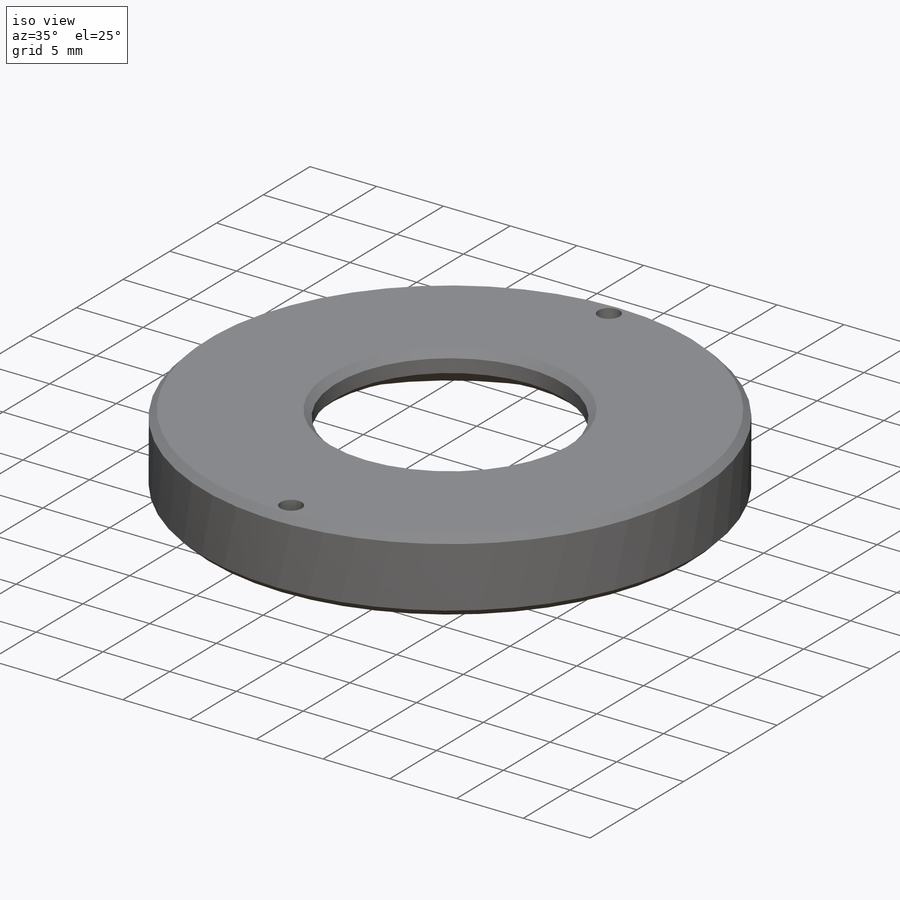
[diagram: iso view]
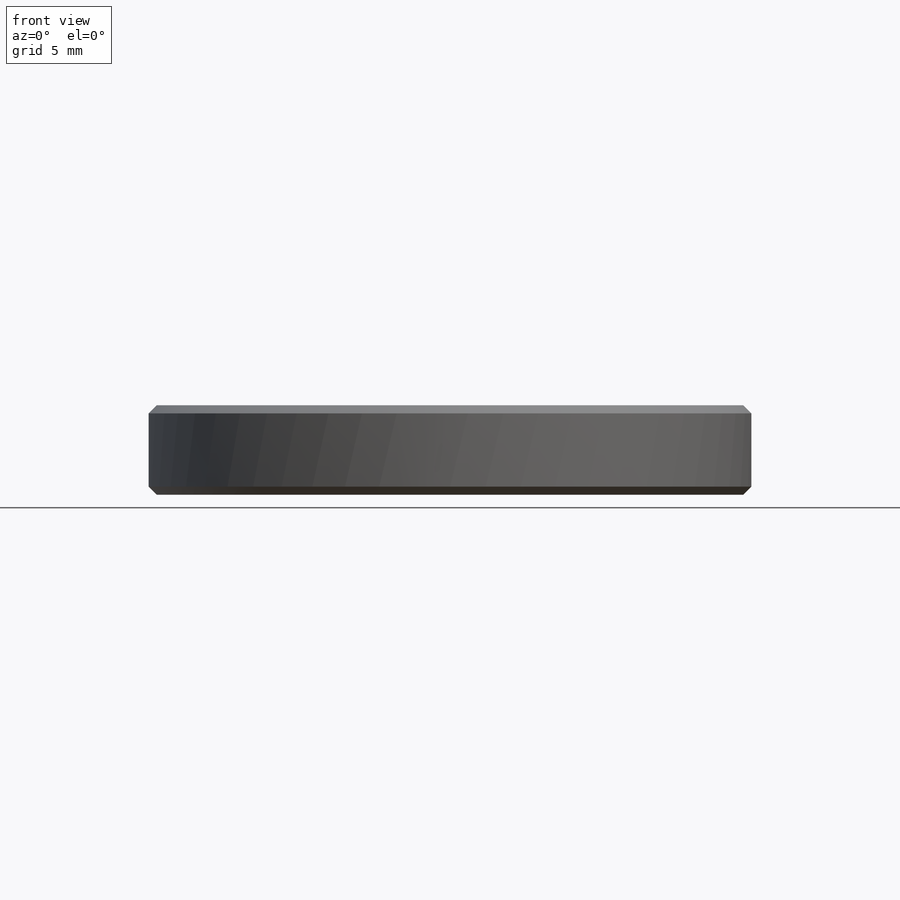
[diagram: front view]
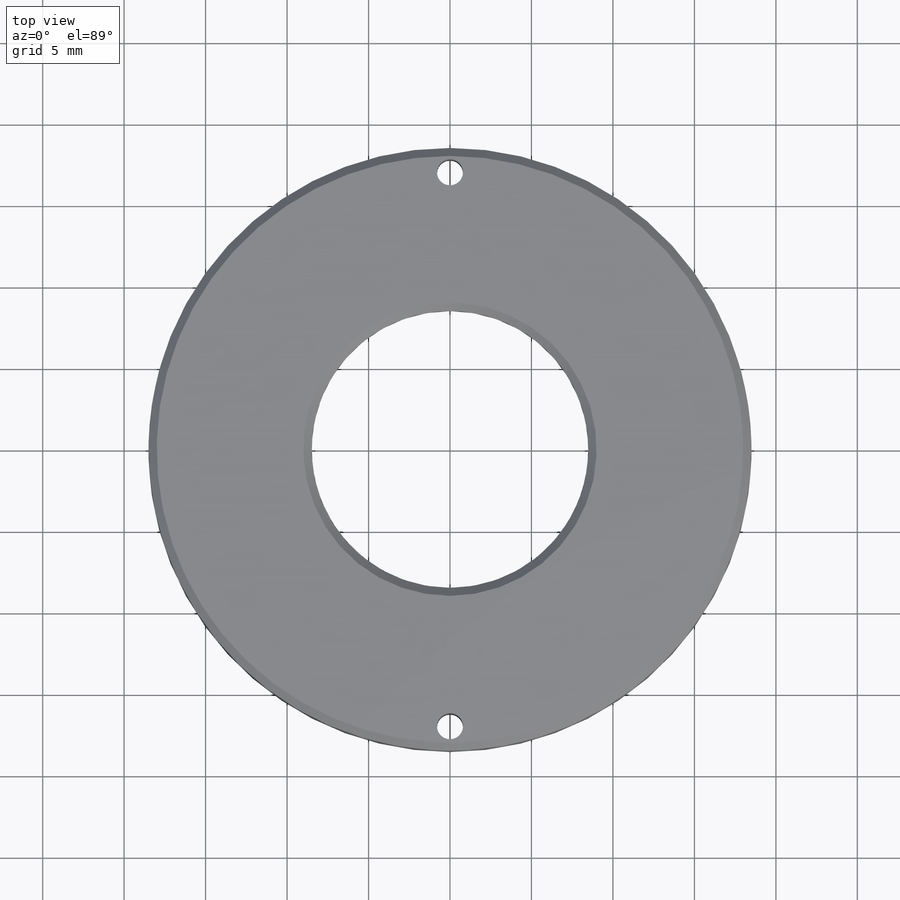
[diagram: top view]
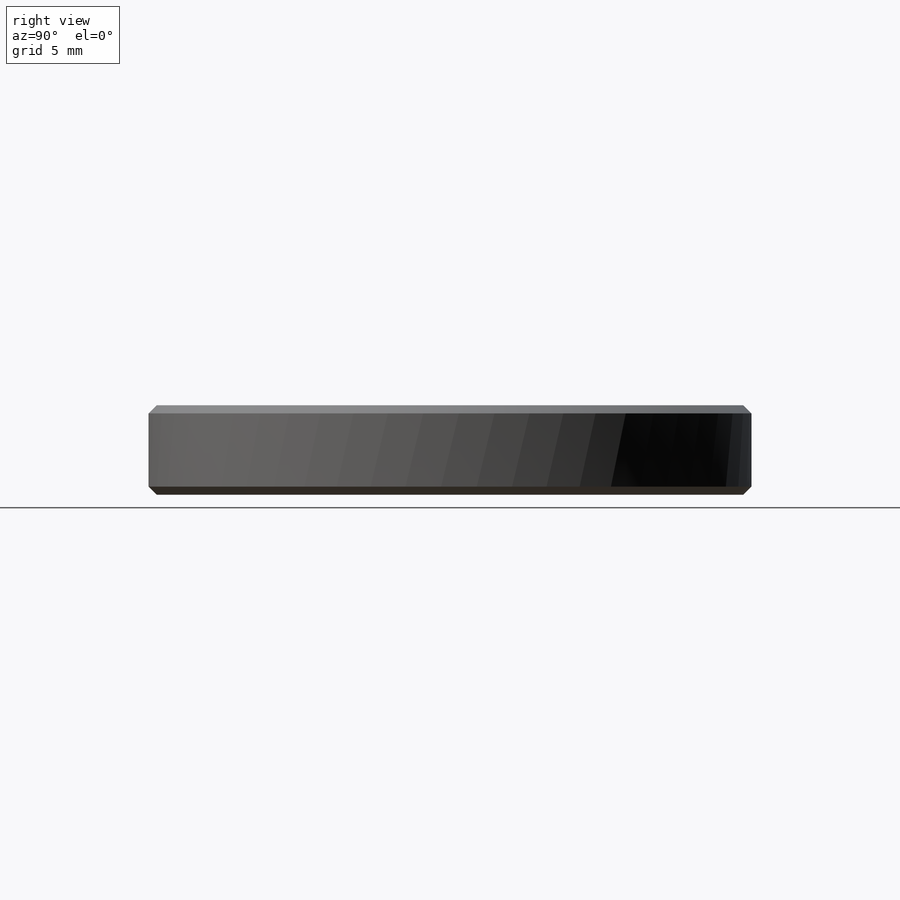
[diagram: right view]
SOLIDWORKS PART (.sldprt)
format: sldprt  version: not decoded by parser v0  size: 357,376 bytes
history: native  units: mm
features: sketch x3, thread x2, material x1, revolve x1, chamfer x1, hole x1 (+15 scaffold rows collapsed)
feature tree (24):
  scaffold x15  (default folders/planes/origin — collapsed)
  material  "AISI 1020"
  sketch  "Sketch2"  dims[c1.D1=2.0mm c1.D2=2.0mm c1.D3=3.0mm c1.D4=0.75mm c1.D5=11.0mm c1.D6=3.0mm c2.D6=80.0deg c2.D3=1.25mm c2.D7=1.0mm c2.D5=15.0mm c3.D3=8.5mm c3.D5=15.5mm c3.D8=3.5mm c3.D2=3.0mm]
  revolve  "Revolve1"  Angle=360deg
  chamfer  "Chamfer1"  Distance=0.5mm Angle=45deg
  hole  "M2x0.4 Tapped Hole1"  Diameter=1.6mm Depth=15.2mm
  sketch  "3DSketch1"  dims[D1=17.0mm D2=17.0mm]
  sketch  "Sketch3"  dims[hole-wizard template sketch: 47 standard entries collapsed; hole parameters kept: c15.Tap Drill Depth=15.2mm c15.D3=~14.816244mm c15.Drill Angle=118.0deg]
  thread  "Hole Thread1"  [2 undecoded]
  thread  "Hole Thread2"  [2 undecoded]
decode coverage: 6 of 8 modeling features carry decoded parameters
note: ~ marks probable driven/reference dimensions
note: 4 parameter values undecoded
note: suppression state not decoded; provenance and decode notes live in map.json
